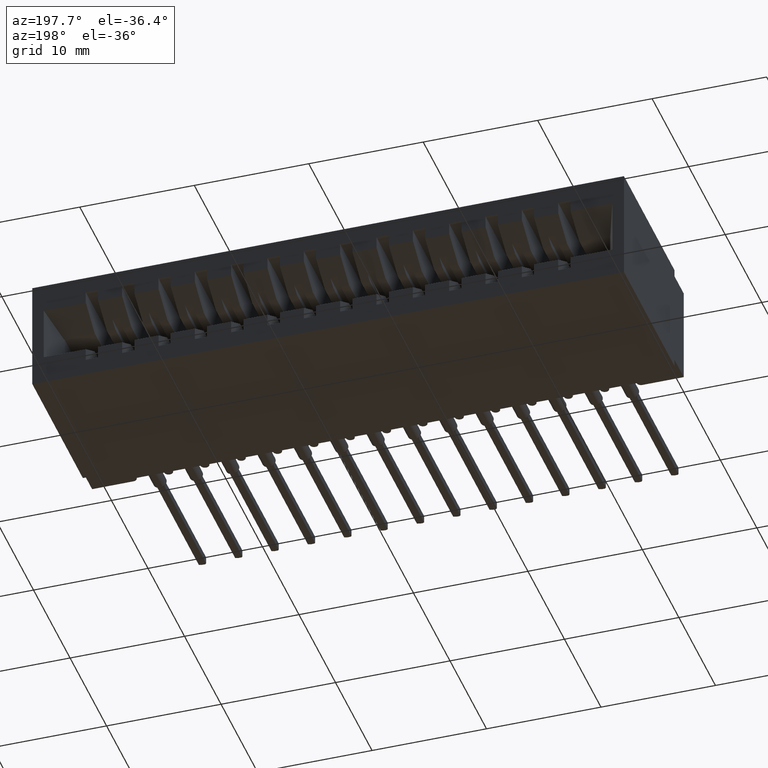
[diagram: clean part render]
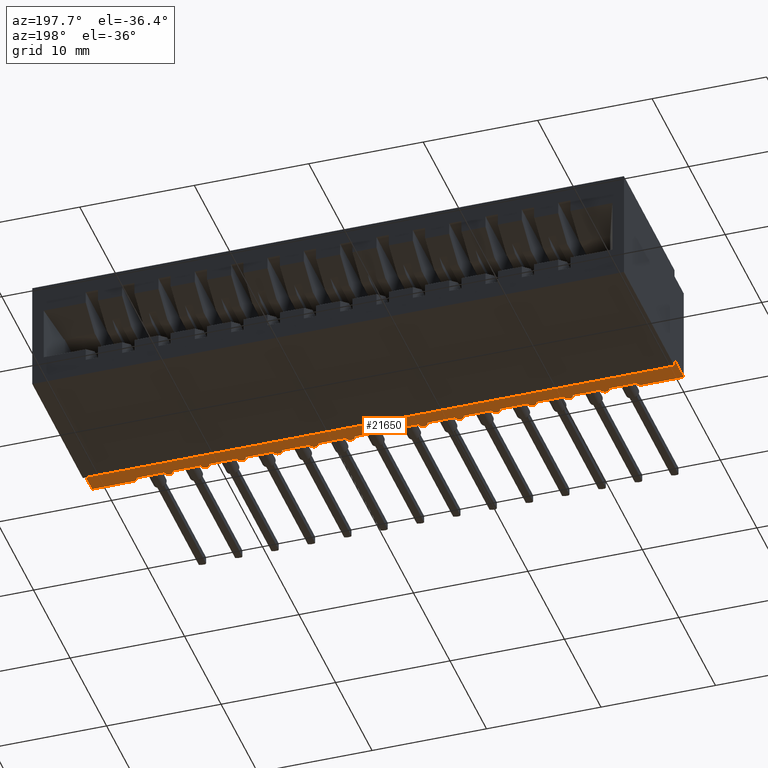
[diagram: same view with one face highlighted and labeled with its STEP entity id]
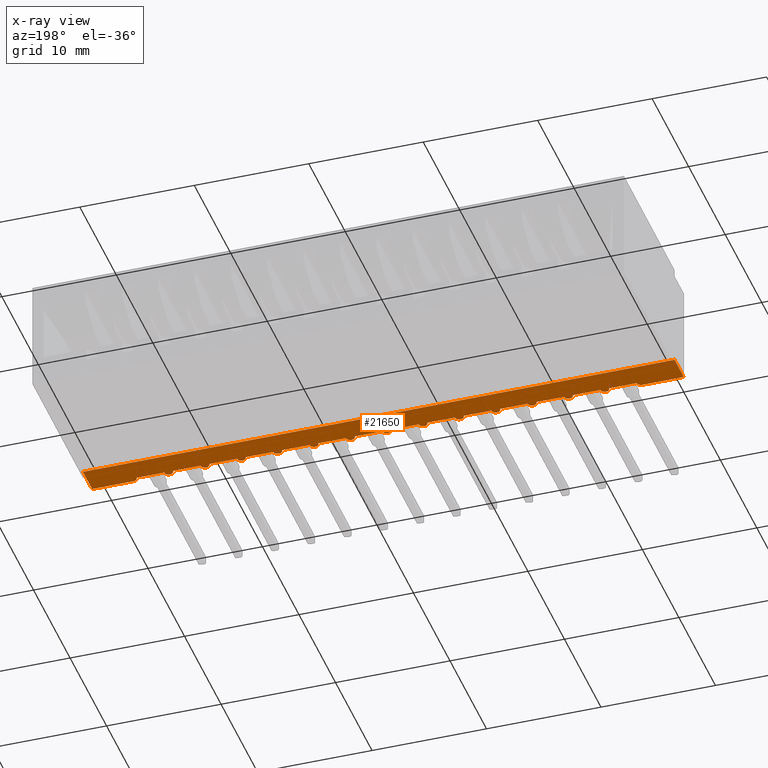
[diagram: x-ray of the same camera — body ghosted, the highlighted face saturated]
A machine part, auxiliary view. The second image highlights one B-rep face of the part: STEP entity #21650.
The next image is the same camera in x-ray: the body ghosted, the highlighted face saturated — about 0% of this face is hidden behind the body in this view.
In plain terms, the highlighted planar face has unit normal (0, 0, 1).
Its self-contained STEP definition (entity closure, byte-faithful):
#51 = LINE ( 'NONE', #13799, #19844 ) ;
#290 = CIRCLE ( 'NONE', #6789, 0.01499999999999997689 ) ;
#396 = VECTOR ( 'NONE', #5814, 39.37007874015748143 ) ;
#539 = CARTESIAN_POINT ( 'NONE',  ( 1.532499999999999529, 0.01499999999999997169, -0.3649999999999999911 ) ) ;
#552 = CIRCLE ( 'NONE', #9924, 0.01500000000000001159 ) ;
#621 = LINE ( 'NONE', #2267, #1838 ) ;
#636 = CARTESIAN_POINT ( 'NONE',  ( 1.627499999999999503, 0.01499999999999997169, -0.3649999999999999911 ) ) ;
#680 = ORIENTED_EDGE ( 'NONE', *, *, #897, .F. ) ;
#695 = AXIS2_PLACEMENT_3D ( 'NONE', #24766, #1143, #11057 ) ;
#753 = ORIENTED_EDGE ( 'NONE', *, *, #8508, .F. ) ;
#897 = EDGE_CURVE ( 'NONE', #9051, #13853, #290, .T. ) ;
#1007 = AXIS2_PLACEMENT_3D ( 'NONE', #21510, #12121, #4342 ) ;
#1091 = DIRECTION ( 'NONE',  ( 1.000000000000000000, 0.0000000000000000000, 0.0000000000000000000 ) ) ;
#1143 = DIRECTION ( 'NONE',  ( 0.0000000000000000000, 0.0000000000000000000, 1.000000000000000000 ) ) ;
#1164 = EDGE_CURVE ( 'NONE', #12284, #9326, #13508, .T. ) ;
#1268 = CARTESIAN_POINT ( 'NONE',  ( 1.127499999999999725, 0.01499999999999997169, -0.3649999999999999911 ) ) ;
#1410 = VERTEX_POINT ( 'NONE', #13101 ) ;
#1480 = CARTESIAN_POINT ( 'NONE',  ( 0.5324999999999997513, 0.01499999999999997169, -0.3649999999999999911 ) ) ;
#1495 = DIRECTION ( 'NONE',  ( 0.0000000000000000000, 0.0000000000000000000, 1.000000000000000000 ) ) ;
#1626 = LINE ( 'NONE', #24776, #396 ) ;
#1687 = CARTESIAN_POINT ( 'NONE',  ( 0.7524999999999997247, 0.01499999999999997169, -0.3649999999999999911 ) ) ;
#1748 = LINE ( 'NONE', #9544, #2386 ) ;
#1789 = DIRECTION ( 'NONE',  ( 1.000000000000000000, -0.0000000000000000000, -2.307304048702925122E-16 ) ) ;
#1838 = VECTOR ( 'NONE', #4171, 39.37007874015748143 ) ;
#2064 = VERTEX_POINT ( 'NONE', #19777 ) ;
#2128 = EDGE_CURVE ( 'NONE', #25087, #18987, #6536, .T. ) ;
#2169 = CARTESIAN_POINT ( 'NONE',  ( 2.035000000000000142, 0.0000000000000000000, -0.3649999999999999911 ) ) ;
#2267 = CARTESIAN_POINT ( 'NONE',  ( 2.035000000000000142, 0.0000000000000000000, -0.3649999999999999911 ) ) ;
#2322 = DIRECTION ( 'NONE',  ( 1.000000000000000000, 0.0000000000000000000, 0.0000000000000000000 ) ) ;
#2386 = VECTOR ( 'NONE', #19313, 39.37007874015748143 ) ;
#2397 = ORIENTED_EDGE ( 'NONE', *, *, #24003, .F. ) ;
#2457 = DIRECTION ( 'NONE',  ( 0.0000000000000000000, 0.0000000000000000000, 1.000000000000000000 ) ) ;
#2459 = CARTESIAN_POINT ( 'NONE',  ( 0.5589999999999996083, 0.01499999999999996302, -0.3649999999999999911 ) ) ;
#2841 = DIRECTION ( 'NONE',  ( 1.000000000000000000, -0.0000000000000000000, -2.307304048702925122E-16 ) ) ;
#2872 = CARTESIAN_POINT ( 'NONE',  ( 0.1424999999999997102, 0.0000000000000000000, -0.3649999999999999911 ) ) ;
#2934 = ORIENTED_EDGE ( 'NONE', *, *, #12873, .F. ) ;
#3301 = AXIS2_PLACEMENT_3D ( 'NONE', #23562, #15566, #2322 ) ;
#3313 = CARTESIAN_POINT ( 'NONE',  ( 1.017499999999999627, 0.01499999999999997169, -0.3649999999999999911 ) ) ;
#3389 = AXIS2_PLACEMENT_3D ( 'NONE', #12383, #8053, #15810 ) ;
#3401 = CARTESIAN_POINT ( 'NONE',  ( 0.7824999999999997513, 0.01499999999999997169, -0.3649999999999999911 ) ) ;
#3701 = DIRECTION ( 'NONE',  ( 0.0000000000000000000, 0.0000000000000000000, 1.000000000000000000 ) ) ;
#3748 = CARTESIAN_POINT ( 'NONE',  ( 0.6424999999999996270, 0.01499999999999997169, -0.3649999999999999911 ) ) ;
#3828 = CARTESIAN_POINT ( 'NONE',  ( 1.782499999999999529, 0.01499999999999997169, -0.3649999999999999911 ) ) ;
#3921 = CARTESIAN_POINT ( 'NONE',  ( 0.8089999999999996083, 0.01499999999999996302, -0.3649999999999999911 ) ) ;
#3929 = EDGE_CURVE ( 'NONE', #13994, #15669, #22315, .T. ) ;
#4008 = VERTEX_POINT ( 'NONE', #5606 ) ;
#4067 = EDGE_CURVE ( 'NONE', #17134, #6934, #11675, .T. ) ;
#4080 = CARTESIAN_POINT ( 'NONE',  ( 1.517499999999999849, 0.01499999999999997169, -0.3649999999999999911 ) ) ;
#4118 = DIRECTION ( 'NONE',  ( 1.000000000000000000, -0.0000000000000000000, -2.307304048702925122E-16 ) ) ;
#4143 = CIRCLE ( 'NONE', #17162, 0.01499999999999997689 ) ;
#4153 = DIRECTION ( 'NONE',  ( 1.000000000000000000, -0.0000000000000000000, -2.307304048702925122E-16 ) ) ;
#4171 = DIRECTION ( 'NONE',  ( -1.000000000000000000, -0.0000000000000000000, -0.0000000000000000000 ) ) ;
#4342 = DIRECTION ( 'NONE',  ( 1.000000000000000000, 0.0000000000000000000, 0.0000000000000000000 ) ) ;
#4472 = ORIENTED_EDGE ( 'NONE', *, *, #13764, .F. ) ;
#4637 = CARTESIAN_POINT ( 'NONE',  ( 0.4339999999999996083, 0.01499999999999996302, -0.3649999999999999911 ) ) ;
#4729 = ORIENTED_EDGE ( 'NONE', *, *, #15535, .T. ) ;
#4738 = ORIENTED_EDGE ( 'NONE', *, *, #9092, .T. ) ;
#4836 = VERTEX_POINT ( 'NONE', #16965 ) ;
#5102 = VECTOR ( 'NONE', #16904, 39.37007874015748143 ) ;
#5129 = DIRECTION ( 'NONE',  ( 1.000000000000000000, 0.0000000000000000000, -0.0000000000000000000 ) ) ;
#5154 = CARTESIAN_POINT ( 'NONE',  ( 1.502499999999999503, 0.01499999999999997169, -0.3649999999999999911 ) ) ;
#5241 = LINE ( 'NONE', #11104, #24753 ) ;
#5255 = CIRCLE ( 'NONE', #21902, 0.01499999999999997689 ) ;
#5464 = VECTOR ( 'NONE', #16331, 39.37007874015748143 ) ;
#5496 = VECTOR ( 'NONE', #6628, 39.37007874015748143 ) ;
#5606 = CARTESIAN_POINT ( 'NONE',  ( 1.407499999999999751, 0.01499999999999997169, -0.3649999999999999911 ) ) ;
#5669 = DIRECTION ( 'NONE',  ( 1.000000000000000000, -0.0000000000000000000, -2.307304048702925122E-16 ) ) ;
#5723 = ORIENTED_EDGE ( 'NONE', *, *, #21849, .F. ) ;
#5779 = ORIENTED_EDGE ( 'NONE', *, *, #1164, .F. ) ;
#5785 = EDGE_CURVE ( 'NONE', #15669, #6876, #15834, .T. ) ;
#5814 = DIRECTION ( 'NONE',  ( -1.000000000000000000, -0.0000000000000000000, -0.0000000000000000000 ) ) ;
#5868 = AXIS2_PLACEMENT_3D ( 'NONE', #13410, #3701, #11741 ) ;
#5963 = ORIENTED_EDGE ( 'NONE', *, *, #15478, .F. ) ;
#6020 = CARTESIAN_POINT ( 'NONE',  ( 0.3774999999999996692, 0.01499999999999997169, -0.3649999999999999911 ) ) ;
#6137 = VERTEX_POINT ( 'NONE', #12129 ) ;
#6190 = LINE ( 'NONE', #15495, #18879 ) ;
#6471 = ORIENTED_EDGE ( 'NONE', *, *, #23049, .F. ) ;
#6536 = LINE ( 'NONE', #2459, #20100 ) ;
#6628 = DIRECTION ( 'NONE',  ( 1.000000000000000000, -0.0000000000000000000, -2.307304048702925122E-16 ) ) ;
#6679 = AXIS2_PLACEMENT_3D ( 'NONE', #4080, #15915, #11860 ) ;
#6789 = AXIS2_PLACEMENT_3D ( 'NONE', #10378, #2457, #23576 ) ;
#6821 = CARTESIAN_POINT ( 'NONE',  ( 1.642499999999999849, 0.01499999999999997169, -0.3649999999999999911 ) ) ;
#6844 = DIRECTION ( 'NONE',  ( 1.000000000000000000, 0.0000000000000000000, 0.0000000000000000000 ) ) ;
#6876 = VERTEX_POINT ( 'NONE', #1268 ) ;
#6934 = VERTEX_POINT ( 'NONE', #3401 ) ;
#7094 = EDGE_CURVE ( 'NONE', #4008, #19998, #6190, .T. ) ;
#7153 = VERTEX_POINT ( 'NONE', #22685 ) ;
#7241 = EDGE_CURVE ( 'NONE', #15933, #12106, #552, .T. ) ;
#7291 = ORIENTED_EDGE ( 'NONE', *, *, #7455, .F. ) ;
#7332 = LINE ( 'NONE', #16654, #5102 ) ;
#7455 = EDGE_CURVE ( 'NONE', #14056, #16728, #23296, .T. ) ;
#8053 = DIRECTION ( 'NONE',  ( 0.0000000000000000000, 0.0000000000000000000, 1.000000000000000000 ) ) ;
#8178 = DIRECTION ( 'NONE',  ( 1.000000000000000000, -0.0000000000000000000, -2.307304048702925122E-16 ) ) ;
#8350 = DIRECTION ( 'NONE',  ( 1.000000000000000000, 0.0000000000000000000, 0.0000000000000000000 ) ) ;
#8508 = EDGE_CURVE ( 'NONE', #2064, #18543, #18740, .T. ) ;
#8522 = ORIENTED_EDGE ( 'NONE', *, *, #17888, .F. ) ;
#8723 = CIRCLE ( 'NONE', #6679, 0.01499999999999997689 ) ;
#8811 = CARTESIAN_POINT ( 'NONE',  ( 0.3089999999999996083, 0.01499999999999996302, -0.3649999999999999911 ) ) ;
#8870 = ORIENTED_EDGE ( 'NONE', *, *, #2128, .F. ) ;
#9001 = VECTOR ( 'NONE', #2841, 39.37007874015748143 ) ;
#9051 = VERTEX_POINT ( 'NONE', #22896 ) ;
#9092 = EDGE_CURVE ( 'NONE', #15831, #19329, #15401, .T. ) ;
#9205 = DIRECTION ( 'NONE',  ( 1.000000000000000000, 0.0000000000000000000, 0.0000000000000000000 ) ) ;
#9326 = VERTEX_POINT ( 'NONE', #636 ) ;
#9488 = ORIENTED_EDGE ( 'NONE', *, *, #3929, .F. ) ;
#9544 = CARTESIAN_POINT ( 'NONE',  ( 2.035000000000000142, 0.1000000000000000056, -0.3649999999999999911 ) ) ;
#9646 = DIRECTION ( 'NONE',  ( 1.000000000000000000, 0.0000000000000000000, 0.0000000000000000000 ) ) ;
#9649 = CARTESIAN_POINT ( 'NONE',  ( 1.377499999999999725, 0.01499999999999997169, -0.3649999999999999911 ) ) ;
#9924 = AXIS2_PLACEMENT_3D ( 'NONE', #16721, #16971, #1091 ) ;
#10378 = CARTESIAN_POINT ( 'NONE',  ( 0.8924999999999997380, 0.01499999999999997169, -0.3649999999999999911 ) ) ;
#10725 = ORIENTED_EDGE ( 'NONE', *, *, #12937, .F. ) ;
#10977 = CARTESIAN_POINT ( 'NONE',  ( 0.0000000000000000000, 0.0000000000000000000, -0.3649999999999999911 ) ) ;
#11052 = CIRCLE ( 'NONE', #3301, 0.01499999999999997689 ) ;
#11057 = DIRECTION ( 'NONE',  ( 1.000000000000000000, 0.0000000000000000000, 0.0000000000000000000 ) ) ;
#11104 = CARTESIAN_POINT ( 'NONE',  ( 0.9339999999999994973, 0.01499999999999996302, -0.3649999999999999911 ) ) ;
#11280 = ORIENTED_EDGE ( 'NONE', *, *, #7094, .F. ) ;
#11339 = CARTESIAN_POINT ( 'NONE',  ( 0.0000000000000000000, 0.0000000000000000000, -0.3649999999999999911 ) ) ;
#11341 = ORIENTED_EDGE ( 'NONE', *, *, #17047, .F. ) ;
#11485 = ORIENTED_EDGE ( 'NONE', *, *, #19488, .F. ) ;
#11664 = ORIENTED_EDGE ( 'NONE', *, *, #15199, .F. ) ;
#11675 = CIRCLE ( 'NONE', #695, 0.01499999999999997689 ) ;
#11741 = DIRECTION ( 'NONE',  ( 1.000000000000000000, 0.0000000000000000000, 0.0000000000000000000 ) ) ;
#11745 = DIRECTION ( 'NONE',  ( 0.0000000000000000000, 1.000000000000000000, 0.0000000000000000000 ) ) ;
#11843 = ORIENTED_EDGE ( 'NONE', *, *, #4067, .F. ) ;
#11860 = DIRECTION ( 'NONE',  ( 1.000000000000000000, 0.0000000000000000000, 0.0000000000000000000 ) ) ;
#12059 = DIRECTION ( 'NONE',  ( 0.0000000000000000000, 0.0000000000000000000, 1.000000000000000000 ) ) ;
#12106 = VERTEX_POINT ( 'NONE', #2872 ) ;
#12121 = DIRECTION ( 'NONE',  ( 0.0000000000000000000, 0.0000000000000000000, 1.000000000000000000 ) ) ;
#12129 = CARTESIAN_POINT ( 'NONE',  ( 2.035000000000000142, 0.1000000000000000056, -0.3649999999999999911 ) ) ;
#12142 = CARTESIAN_POINT ( 'NONE',  ( 0.9074999999999996403, 0.01499999999999997169, -0.3649999999999999911 ) ) ;
#12284 = VERTEX_POINT ( 'NONE', #539 ) ;
#12383 = CARTESIAN_POINT ( 'NONE',  ( 1.267499999999999627, 0.01499999999999997169, -0.3649999999999999911 ) ) ;
#12413 = VECTOR ( 'NONE', #22656, 39.37007874015748143 ) ;
#12678 = AXIS2_PLACEMENT_3D ( 'NONE', #13829, #21561, #8350 ) ;
#12818 = VECTOR ( 'NONE', #11745, 39.37007874015748143 ) ;
#12865 = CARTESIAN_POINT ( 'NONE',  ( 0.5024999999999996136, 0.01499999999999997169, -0.3649999999999999911 ) ) ;
#12873 = EDGE_CURVE ( 'NONE', #6934, #9051, #22871, .T. ) ;
#12937 = EDGE_CURVE ( 'NONE', #6137, #19329, #1748, .T. ) ;
#13101 = CARTESIAN_POINT ( 'NONE',  ( 0.4074999999999996958, 0.01499999999999997169, -0.3649999999999999911 ) ) ;
#13104 = DIRECTION ( 'NONE',  ( 0.0000000000000000000, 0.0000000000000000000, 1.000000000000000000 ) ) ;
#13194 = CIRCLE ( 'NONE', #5868, 0.01499999999999997689 ) ;
#13284 = DIRECTION ( 'NONE',  ( 0.0000000000000000000, 0.0000000000000000000, 1.000000000000000000 ) ) ;
#13289 = EDGE_CURVE ( 'NONE', #18543, #15262, #5255, .T. ) ;
#13335 = DIRECTION ( 'NONE',  ( 1.000000000000000000, 0.0000000000000000000, 0.0000000000000000000 ) ) ;
#13410 = CARTESIAN_POINT ( 'NONE',  ( 1.142499999999999627, 0.01499999999999997169, -0.3649999999999999911 ) ) ;
#13418 = AXIS2_PLACEMENT_3D ( 'NONE', #13483, #13104, #21196 ) ;
#13483 = CARTESIAN_POINT ( 'NONE',  ( 0.3924999999999996825, 0.01499999999999997169, -0.3649999999999999911 ) ) ;
#13508 = LINE ( 'NONE', #23266, #20228 ) ;
#13764 = EDGE_CURVE ( 'NONE', #16728, #14477, #51, .T. ) ;
#13765 = VERTEX_POINT ( 'NONE', #15819 ) ;
#13796 = ORIENTED_EDGE ( 'NONE', *, *, #23199, .T. ) ;
#13799 = CARTESIAN_POINT ( 'NONE',  ( 1.308999999999999941, 0.01499999999999996302, -0.3649999999999999911 ) ) ;
#13803 = AXIS2_PLACEMENT_3D ( 'NONE', #3313, #18846, #9205 ) ;
#13829 = CARTESIAN_POINT ( 'NONE',  ( 0.2674999999999996825, 0.01499999999999997169, -0.3649999999999999911 ) ) ;
#13853 = VERTEX_POINT ( 'NONE', #12142 ) ;
#13994 = VERTEX_POINT ( 'NONE', #20388 ) ;
#14056 = VERTEX_POINT ( 'NONE', #25146 ) ;
#14219 = CIRCLE ( 'NONE', #13418, 0.01499999999999997689 ) ;
#14295 = CARTESIAN_POINT ( 'NONE',  ( 1.058999999999999497, 0.01499999999999996302, -0.3649999999999999911 ) ) ;
#14324 = ORIENTED_EDGE ( 'NONE', *, *, #18073, .F. ) ;
#14477 = VERTEX_POINT ( 'NONE', #9649 ) ;
#14484 = EDGE_CURVE ( 'NONE', #23991, #14056, #19284, .T. ) ;
#14486 = CARTESIAN_POINT ( 'NONE',  ( 1.892499999999999627, 0.01499999999999997169, -0.3649999999999999911 ) ) ;
#14551 = VERTEX_POINT ( 'NONE', #17761 ) ;
#14856 = ORIENTED_EDGE ( 'NONE', *, *, #7241, .T. ) ;
#14933 = PLANE ( 'NONE',  #22923 ) ;
#15012 = VERTEX_POINT ( 'NONE', #6020 ) ;
#15199 = EDGE_CURVE ( 'NONE', #13853, #13994, #5241, .T. ) ;
#15262 = VERTEX_POINT ( 'NONE', #3828 ) ;
#15401 = LINE ( 'NONE', #11339, #12413 ) ;
#15402 = CARTESIAN_POINT ( 'NONE',  ( 0.1574999999999997236, 0.01499999999999997169, -0.3649999999999999911 ) ) ;
#15478 = EDGE_CURVE ( 'NONE', #15012, #1410, #14219, .T. ) ;
#15495 = CARTESIAN_POINT ( 'NONE',  ( 1.433999999999999719, 0.01499999999999996302, -0.3649999999999999911 ) ) ;
#15535 = EDGE_CURVE ( 'NONE', #13765, #14551, #1626, .T. ) ;
#15566 = DIRECTION ( 'NONE',  ( 0.0000000000000000000, 0.0000000000000000000, 1.000000000000000000 ) ) ;
#15634 = CIRCLE ( 'NONE', #1007, 0.01499999999999997689 ) ;
#15669 = VERTEX_POINT ( 'NONE', #18224 ) ;
#15810 = DIRECTION ( 'NONE',  ( 1.000000000000000000, 0.0000000000000000000, 0.0000000000000000000 ) ) ;
#15819 = CARTESIAN_POINT ( 'NONE',  ( 2.035000000000000142, 0.0000000000000000000, -0.3649999999999999911 ) ) ;
#15831 = VERTEX_POINT ( 'NONE', #10977 ) ;
#15834 = LINE ( 'NONE', #14295, #22078 ) ;
#15842 = ORIENTED_EDGE ( 'NONE', *, *, #14484, .F. ) ;
#15912 = CIRCLE ( 'NONE', #19986, 0.01499999999999997689 ) ;
#15915 = DIRECTION ( 'NONE',  ( 0.0000000000000000000, 0.0000000000000000000, 1.000000000000000000 ) ) ;
#15933 = VERTEX_POINT ( 'NONE', #15402 ) ;
#16196 = VECTOR ( 'NONE', #5669, 39.37007874015748143 ) ;
#16249 = VERTEX_POINT ( 'NONE', #12865 ) ;
#16331 = DIRECTION ( 'NONE',  ( 1.000000000000000000, -0.0000000000000000000, -2.307304048702925122E-16 ) ) ;
#16509 = VERTEX_POINT ( 'NONE', #18037 ) ;
#16654 = CARTESIAN_POINT ( 'NONE',  ( 1.808999999999999719, 0.01499999999999996302, -0.3649999999999999911 ) ) ;
#16708 = ORIENTED_EDGE ( 'NONE', *, *, #24613, .F. ) ;
#16721 = CARTESIAN_POINT ( 'NONE',  ( 0.1424999999999997102, 0.01499999999999997169, -0.3649999999999999911 ) ) ;
#16728 = VERTEX_POINT ( 'NONE', #24864 ) ;
#16904 = DIRECTION ( 'NONE',  ( 1.000000000000000000, -0.0000000000000000000, -2.307304048702925122E-16 ) ) ;
#16965 = CARTESIAN_POINT ( 'NONE',  ( 1.877499999999999503, 0.01499999999999997169, -0.3649999999999999911 ) ) ;
#16971 = DIRECTION ( 'NONE',  ( -0.0000000000000000000, -0.0000000000000000000, -1.000000000000000000 ) ) ;
#17047 = EDGE_CURVE ( 'NONE', #1410, #16249, #20292, .T. ) ;
#17109 = EDGE_LOOP ( 'NONE', ( #23999, #22948, #753, #20813, #5779, #5723, #11280, #23780, #4472, #7291, #15842, #20985, #21247, #9488, #11664, #680, #2934, #11843, #11485, #8522, #8870, #2397, #11341, #5963, #6471, #14324, #16708, #14856, #13796, #4738, #10725, #25044, #4729, #18186 ) ) ;
#17134 = VERTEX_POINT ( 'NONE', #1687 ) ;
#17136 = DIRECTION ( 'NONE',  ( 1.000000000000000000, -0.0000000000000000000, -2.307304048702925122E-16 ) ) ;
#17162 = AXIS2_PLACEMENT_3D ( 'NONE', #14486, #24271, #6844 ) ;
#17272 = LINE ( 'NONE', #18789, #17569 ) ;
#17295 = CIRCLE ( 'NONE', #17707, 0.01499999999999997689 ) ;
#17569 = VECTOR ( 'NONE', #17136, 39.37007874015748143 ) ;
#17594 = CARTESIAN_POINT ( 'NONE',  ( 1.752499999999999503, 0.01499999999999997169, -0.3649999999999999911 ) ) ;
#17707 = AXIS2_PLACEMENT_3D ( 'NONE', #6821, #12059, #19804 ) ;
#17761 = CARTESIAN_POINT ( 'NONE',  ( 1.892499999999999627, 0.0000000000000000000, -0.3649999999999999911 ) ) ;
#17872 = DIRECTION ( 'NONE',  ( 1.000000000000000000, -0.0000000000000000000, -2.307304048702925122E-16 ) ) ;
#17888 = EDGE_CURVE ( 'NONE', #18987, #7153, #15912, .T. ) ;
#17945 = CARTESIAN_POINT ( 'NONE',  ( 0.6274999999999996136, 0.01499999999999997169, -0.3649999999999999911 ) ) ;
#18037 = CARTESIAN_POINT ( 'NONE',  ( 0.2824999999999996958, 0.01499999999999997169, -0.3649999999999999911 ) ) ;
#18073 = EDGE_CURVE ( 'NONE', #21722, #16509, #20391, .T. ) ;
#18186 = ORIENTED_EDGE ( 'NONE', *, *, #19479, .F. ) ;
#18224 = CARTESIAN_POINT ( 'NONE',  ( 1.032499999999999751, 0.01499999999999997169, -0.3649999999999999911 ) ) ;
#18478 = EDGE_CURVE ( 'NONE', #14477, #4008, #11052, .T. ) ;
#18543 = VERTEX_POINT ( 'NONE', #17594 ) ;
#18740 = LINE ( 'NONE', #22045, #5464 ) ;
#18789 = CARTESIAN_POINT ( 'NONE',  ( 0.6839999999999996083, 0.01499999999999996302, -0.3649999999999999911 ) ) ;
#18846 = DIRECTION ( 'NONE',  ( 0.0000000000000000000, 0.0000000000000000000, 1.000000000000000000 ) ) ;
#18879 = VECTOR ( 'NONE', #4153, 39.37007874015748143 ) ;
#18909 = CARTESIAN_POINT ( 'NONE',  ( 1.767499999999999627, 0.01499999999999997169, -0.3649999999999999911 ) ) ;
#18987 = VERTEX_POINT ( 'NONE', #17945 ) ;
#19102 = CARTESIAN_POINT ( 'NONE',  ( 2.035000000000000142, 0.0000000000000000000, -0.3649999999999999911 ) ) ;
#19284 = LINE ( 'NONE', #21441, #16196 ) ;
#19313 = DIRECTION ( 'NONE',  ( -1.000000000000000000, -0.0000000000000000000, -0.0000000000000000000 ) ) ;
#19329 = VERTEX_POINT ( 'NONE', #23869 ) ;
#19479 = EDGE_CURVE ( 'NONE', #4836, #14551, #4143, .T. ) ;
#19488 = EDGE_CURVE ( 'NONE', #7153, #17134, #17272, .T. ) ;
#19607 = LINE ( 'NONE', #2169, #12818 ) ;
#19777 = CARTESIAN_POINT ( 'NONE',  ( 1.657499999999999529, 0.01499999999999997169, -0.3649999999999999911 ) ) ;
#19804 = DIRECTION ( 'NONE',  ( 1.000000000000000000, 0.0000000000000000000, 0.0000000000000000000 ) ) ;
#19844 = VECTOR ( 'NONE', #8178, 39.37007874015748143 ) ;
#19986 = AXIS2_PLACEMENT_3D ( 'NONE', #3748, #25009, #9646 ) ;
#19998 = VERTEX_POINT ( 'NONE', #5154 ) ;
#20089 = DIRECTION ( 'NONE',  ( 1.000000000000000000, -0.0000000000000000000, -2.307304048702925122E-16 ) ) ;
#20100 = VECTOR ( 'NONE', #17872, 39.37007874015748143 ) ;
#20219 = CARTESIAN_POINT ( 'NONE',  ( 0.1839999999999996083, 0.01499999999999996302, -0.3649999999999999911 ) ) ;
#20228 = VECTOR ( 'NONE', #23517, 39.37007874015748143 ) ;
#20292 = LINE ( 'NONE', #4637, #9001 ) ;
#20388 = CARTESIAN_POINT ( 'NONE',  ( 1.002499999999999725, 0.01499999999999997169, -0.3649999999999999911 ) ) ;
#20391 = CIRCLE ( 'NONE', #12678, 0.01500000000000001159 ) ;
#20685 = VECTOR ( 'NONE', #23249, 39.37007874015748143 ) ;
#20813 = ORIENTED_EDGE ( 'NONE', *, *, #25070, .F. ) ;
#20918 = VECTOR ( 'NONE', #20089, 39.37007874015748143 ) ;
#20985 = ORIENTED_EDGE ( 'NONE', *, *, #23969, .F. ) ;
#21196 = DIRECTION ( 'NONE',  ( 1.000000000000000000, 0.0000000000000000000, 0.0000000000000000000 ) ) ;
#21247 = ORIENTED_EDGE ( 'NONE', *, *, #5785, .F. ) ;
#21391 = CARTESIAN_POINT ( 'NONE',  ( 0.2524999999999996692, 0.01499999999999997169, -0.3649999999999999911 ) ) ;
#21441 = CARTESIAN_POINT ( 'NONE',  ( 1.183999999999999497, 0.01499999999999996302, -0.3649999999999999911 ) ) ;
#21510 = CARTESIAN_POINT ( 'NONE',  ( 0.5174999999999996270, 0.01499999999999997169, -0.3649999999999999911 ) ) ;
#21561 = DIRECTION ( 'NONE',  ( 0.0000000000000000000, 0.0000000000000000000, 1.000000000000000000 ) ) ;
#21650 = ADVANCED_FACE ( 'NONE', ( #23045 ), #14933, .F. ) ;
#21722 = VERTEX_POINT ( 'NONE', #21391 ) ;
#21765 = CARTESIAN_POINT ( 'NONE',  ( 1.157499999999999751, 0.01499999999999997169, -0.3649999999999999911 ) ) ;
#21849 = EDGE_CURVE ( 'NONE', #19998, #12284, #8723, .T. ) ;
#21855 = LINE ( 'NONE', #20219, #20918 ) ;
#21902 = AXIS2_PLACEMENT_3D ( 'NONE', #18909, #1495, #13335 ) ;
#22045 = CARTESIAN_POINT ( 'NONE',  ( 1.683999999999999497, 0.01499999999999996302, -0.3649999999999999911 ) ) ;
#22078 = VECTOR ( 'NONE', #4118, 39.37007874015748143 ) ;
#22315 = CIRCLE ( 'NONE', #13803, 0.01499999999999997689 ) ;
#22656 = DIRECTION ( 'NONE',  ( 0.0000000000000000000, 1.000000000000000000, 0.0000000000000000000 ) ) ;
#22685 = CARTESIAN_POINT ( 'NONE',  ( 0.6574999999999997513, 0.01499999999999997169, -0.3649999999999999911 ) ) ;
#22871 = LINE ( 'NONE', #3921, #20685 ) ;
#22896 = CARTESIAN_POINT ( 'NONE',  ( 0.8774999999999997247, 0.01499999999999997169, -0.3649999999999999911 ) ) ;
#22923 = AXIS2_PLACEMENT_3D ( 'NONE', #19102, #13284, #5129 ) ;
#22948 = ORIENTED_EDGE ( 'NONE', *, *, #13289, .F. ) ;
#22961 = EDGE_CURVE ( 'NONE', #13765, #6137, #19607, .T. ) ;
#23045 = FACE_OUTER_BOUND ( 'NONE', #17109, .T. ) ;
#23049 = EDGE_CURVE ( 'NONE', #16509, #15012, #24307, .T. ) ;
#23199 = EDGE_CURVE ( 'NONE', #12106, #15831, #621, .T. ) ;
#23249 = DIRECTION ( 'NONE',  ( 1.000000000000000000, -0.0000000000000000000, -2.307304048702925122E-16 ) ) ;
#23266 = CARTESIAN_POINT ( 'NONE',  ( 1.558999999999999719, 0.01499999999999996302, -0.3649999999999999911 ) ) ;
#23296 = CIRCLE ( 'NONE', #3389, 0.01499999999999997689 ) ;
#23507 = EDGE_CURVE ( 'NONE', #15262, #4836, #7332, .T. ) ;
#23517 = DIRECTION ( 'NONE',  ( 1.000000000000000000, -0.0000000000000000000, -2.307304048702925122E-16 ) ) ;
#23562 = CARTESIAN_POINT ( 'NONE',  ( 1.392499999999999627, 0.01499999999999997169, -0.3649999999999999911 ) ) ;
#23576 = DIRECTION ( 'NONE',  ( 1.000000000000000000, 0.0000000000000000000, 0.0000000000000000000 ) ) ;
#23780 = ORIENTED_EDGE ( 'NONE', *, *, #18478, .F. ) ;
#23869 = CARTESIAN_POINT ( 'NONE',  ( 0.0000000000000000000, 0.1000000000000000056, -0.3649999999999999911 ) ) ;
#23969 = EDGE_CURVE ( 'NONE', #6876, #23991, #13194, .T. ) ;
#23991 = VERTEX_POINT ( 'NONE', #21765 ) ;
#23999 = ORIENTED_EDGE ( 'NONE', *, *, #23507, .F. ) ;
#24003 = EDGE_CURVE ( 'NONE', #16249, #25087, #15634, .T. ) ;
#24271 = DIRECTION ( 'NONE',  ( 0.0000000000000000000, 0.0000000000000000000, 1.000000000000000000 ) ) ;
#24307 = LINE ( 'NONE', #8811, #5496 ) ;
#24613 = EDGE_CURVE ( 'NONE', #15933, #21722, #21855, .T. ) ;
#24753 = VECTOR ( 'NONE', #1789, 39.37007874015748143 ) ;
#24766 = CARTESIAN_POINT ( 'NONE',  ( 0.7674999999999996270, 0.01499999999999997169, -0.3649999999999999911 ) ) ;
#24776 = CARTESIAN_POINT ( 'NONE',  ( 2.035000000000000142, 0.0000000000000000000, -0.3649999999999999911 ) ) ;
#24864 = CARTESIAN_POINT ( 'NONE',  ( 1.282499999999999751, 0.01499999999999997169, -0.3649999999999999911 ) ) ;
#25009 = DIRECTION ( 'NONE',  ( 0.0000000000000000000, 0.0000000000000000000, 1.000000000000000000 ) ) ;
#25044 = ORIENTED_EDGE ( 'NONE', *, *, #22961, .F. ) ;
#25070 = EDGE_CURVE ( 'NONE', #9326, #2064, #17295, .T. ) ;
#25087 = VERTEX_POINT ( 'NONE', #1480 ) ;
#25146 = CARTESIAN_POINT ( 'NONE',  ( 1.252499999999999503, 0.01499999999999997169, -0.3649999999999999911 ) ) ;